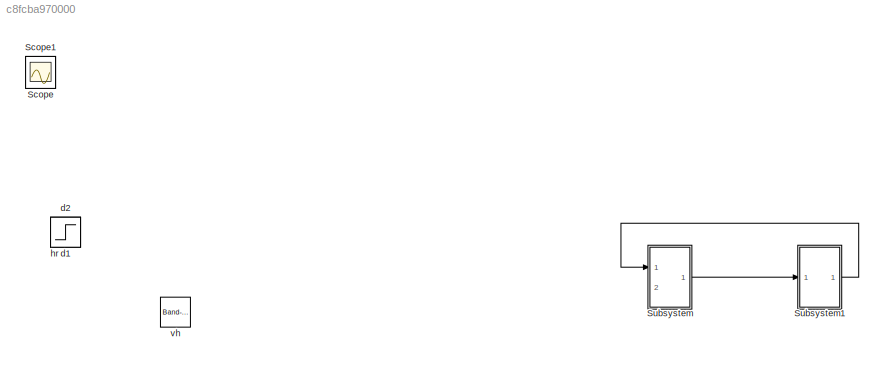
MODEL slx_c8fcba970000
KIND model
CONFIG AbsTol = auto
CONFIG EnableMultiTasking = off
CONFIG FixedStep = auto
CONFIG MaxStep = auto
CONFIG MinStep = auto
CONFIG RelTol = 1e-3
CONFIG SampleTimeConstraint = Unconstrained
CONFIG SolverName = VariableStepAuto
CONFIG StartTime = 0.0
CONFIG StopTime = 10
BLOCK [Scope] Scope
  Floating = off
  IOType = viewer
  NumInputPorts = 1
  Ports = []
  ScopeSpecificationString = Simulink.scopes.TimeScopeBlockCfg('CurrentConfiguration', extmgr.ConfigurationSet(extmgr.Configuration('Core','General UI',true),extmgr.Configuration('Core','Source UI',true),extmgr.Configuration('Sources','WiredSimulink',true),extmgr.Configuration('Visuals','Time Domain',true,'SerializedDisplays',{struct('MinYLimReal','-496.56518','MaxYLimReal','97.20678','YLabelReal','','MinYLimMag',' 0.00000','...<+2135ch>
BLOCK [Scope] Scope1
  Floating = off
  IOType = viewer
  NumInputPorts = 1
  Ports = []
  ScopeSpecificationString = Simulink.scopes.TimeScopeBlockCfg('CurrentConfiguration', extmgr.ConfigurationSet(extmgr.Configuration('Core','General UI',true),extmgr.Configuration('Core','Source UI',true),extmgr.Configuration('Sources','WiredSimulink',true,'DataLoggingVariableName','ScopeData1'),extmgr.Configuration('Visuals','Time Domain',true,'SerializedDisplays',{struct('MinYLimReal','-10.00000','MaxYLimReal','10.00000','YL...<+1365ch>
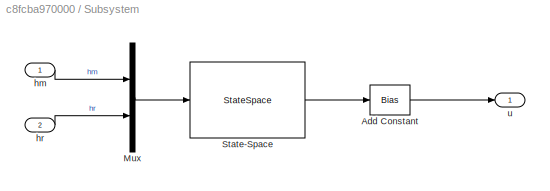
BLOCK [SubSystem] Subsystem
  Ports = [2, 1]
  RequestExecContextInheritance = off
BLOCK [Bias] Subsystem/Add Constant
  Bias = uBar
  SaturateOnIntegerOverflow = off
BLOCK [Mux] Subsystem/Mux
  DisplayOption = bar
  Inputs = 2
  Ports = [2, 1]
BLOCK [StateSpace] Subsystem/State-Space
  A = A
  B = B
  C = C
  D = D
  InitialCondition = 0
  Ports = [1, 1]
BLOCK [Inport] Subsystem/hm
BLOCK [Inport] Subsystem/hr
  Port = 2
BLOCK [Outport] Subsystem/u
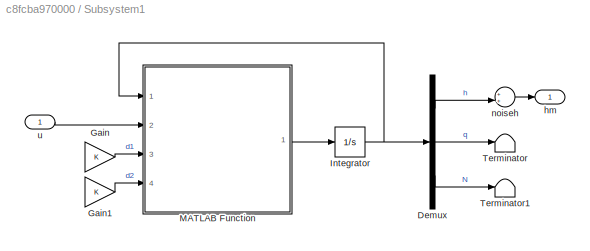
BLOCK [SubSystem] Subsystem1
  Ports = [1, 1]
  RequestExecContextInheritance = off
BLOCK [Demux] Subsystem1/Demux
  Outputs = 3
  Ports = [1, 3]
BLOCK [Gain] Subsystem1/Gain
BLOCK [Gain] Subsystem1/Gain1
BLOCK [Integrator] Subsystem1/Integrator
  InitialCondition = stateBar
  Ports = [1, 1]
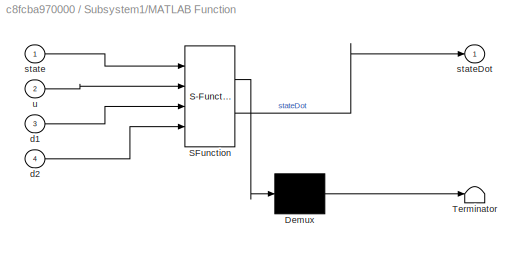
BLOCK [SubSystem] Subsystem1/MATLAB Function
  ErrorFcn = Stateflow.Translate.translate
  PermitHierarchicalResolution = ExplicitOnly
  Ports = [4, 1]
  RequestExecContextInheritance = off
  SFBlockType = MATLAB Function
  TreatAsAtomicUnit = on
BLOCK [Demux] Subsystem1/MATLAB Function/ Demux 
  Outputs = 1
  Ports = [1, 1]
BLOCK [S-Function] Subsystem1/MATLAB Function/ SFunction 
  EnableBusSupport = on
  FunctionName = sf_sfun
  PortCounts = [4 2]
  Ports = [4, 2]
  SFcnIsStateOwnerBlock = off
  SFunctionDeploymentMode = off
  Tag = Stateflow S-Function 2
BLOCK [Terminator] Subsystem1/MATLAB Function/ Terminator 
BLOCK [Inport] Subsystem1/MATLAB Function/d1
  Port = 3
BLOCK [Inport] Subsystem1/MATLAB Function/d2
  Port = 4
BLOCK [Inport] Subsystem1/MATLAB Function/state
BLOCK [Outport] Subsystem1/MATLAB Function/stateDot
BLOCK [Inport] Subsystem1/MATLAB Function/u
  Port = 2
BLOCK [Terminator] Subsystem1/Terminator
BLOCK [Terminator] Subsystem1/Terminator1
BLOCK [Outport] Subsystem1/hm
BLOCK [Sum] Subsystem1/noiseh
  Inputs = ++|
  Ports = [2, 1]
BLOCK [Inport] Subsystem1/u
BLOCK [Step] d1
  After = 0.2
  IOType = siggen
  SampleTime = 0
BLOCK [Step] d2
  After = -1
  IOType = siggen
  SampleTime = 0
  Time = 4
BLOCK [Step] hr
  After = 0
  IOType = siggen
  SampleTime = 0
BLOCK [Reference] vh  REF=simulink/Sources/Band-Limited
White Noise
  IOType = siggen
  Ports = [0, 1]
  SourceBlock = simulink/Sources/Band-Limited\nWhite Noise
  SourceProductBaseCode = SL
  SourceType = Band-Limited White Noise.
LINE Subsystem/Add Constant:1 -> Subsystem/u:1
LINE Subsystem/Mux:1 -> Subsystem/State-Space:1
LINE Subsystem/State-Space:1 -> Subsystem/Add Constant:1
LINE Subsystem/hm:1 -> Subsystem/Mux:1
LINE Subsystem/hr:1 -> Subsystem/Mux:2
LINE Subsystem1/Demux:1 -> Subsystem1/noiseh:2
LINE Subsystem1/Demux:2 -> Subsystem1/Terminator:1
LINE Subsystem1/Demux:3 -> Subsystem1/Terminator1:1
LINE Subsystem1/Gain1:1 -> Subsystem1/MATLAB Function:4
LINE Subsystem1/Gain:1 -> Subsystem1/MATLAB Function:3
NET Subsystem1/Integrator:1 -> Subsystem1/Demux:1, Subsystem1/MATLAB Function:1
LINE Subsystem1/MATLAB Function:1 -> Subsystem1/Integrator:1
LINE Subsystem1/noiseh:1 -> Subsystem1/hm:1
LINE Subsystem1/u:1 -> Subsystem1/MATLAB Function:2
LINE Subsystem1:1 -> Subsystem:1
LINE Subsystem:1 -> Subsystem1:1
note: NET lines group one-source signal fan-out (src -> all destinations, sorted); 1:1 wires keep LINE
CHART Subsystem1/MATLAB Function states=1 transitions=1
  STATE_LABEL 'eML_blk_kernel()'
  STATE_LABEL 'SCRIPT:\nfunction stateDot = fcn(state, u, d1, d2)\nh = state(1);\nq = state(2);\nN = state(3);\n\na = 1.0;\nb = 2.5;\nc = 0.1;\nhBar = 0;\nNBar = a/b;\n\nhDot = q;\nqDot = b*c*NBar*h - b*(1-c*hBar)*N + d2;\nNDot = u + d1;\nstateDot = [hDot; qDot; NDot];\n'
CHART  states=0 transitions=0
